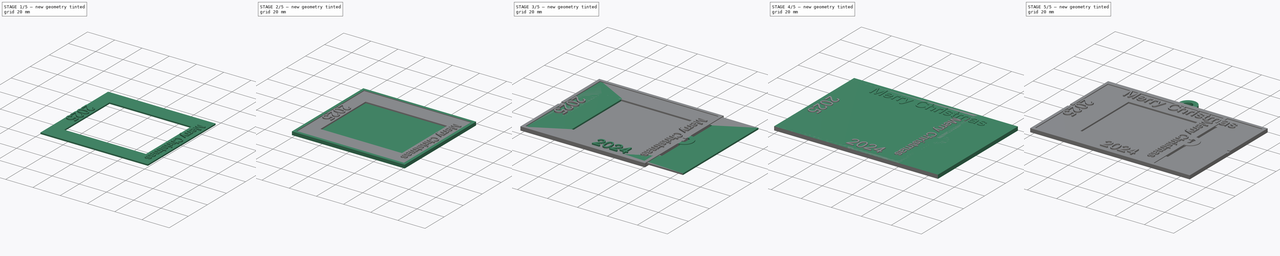
[diagram: build sequence overview — one tinted view per stage of 5, left to right]
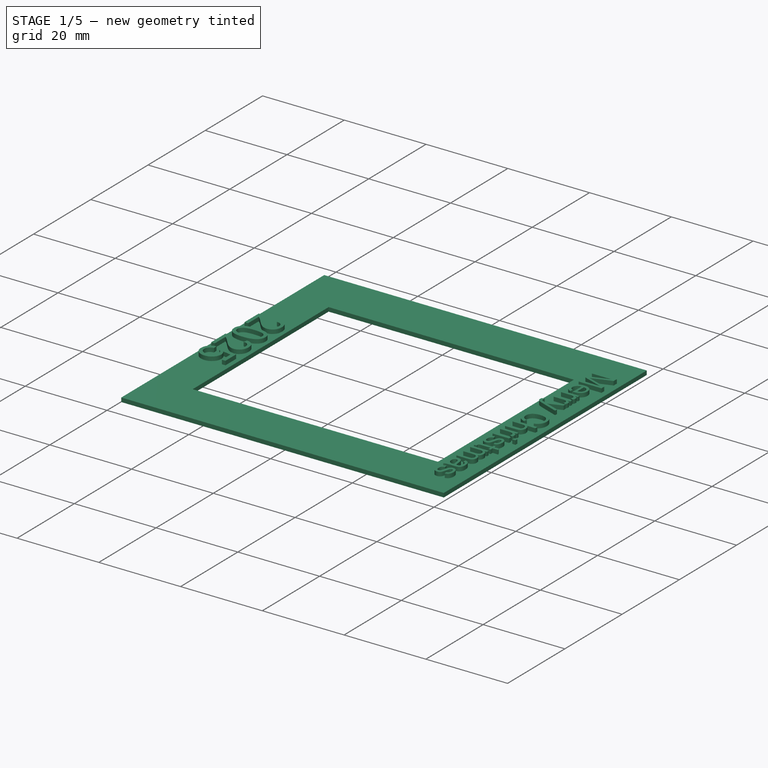
[diagram: stage 1 of 5 — iso view after this stage's code; geometry added in this stage tinted green]
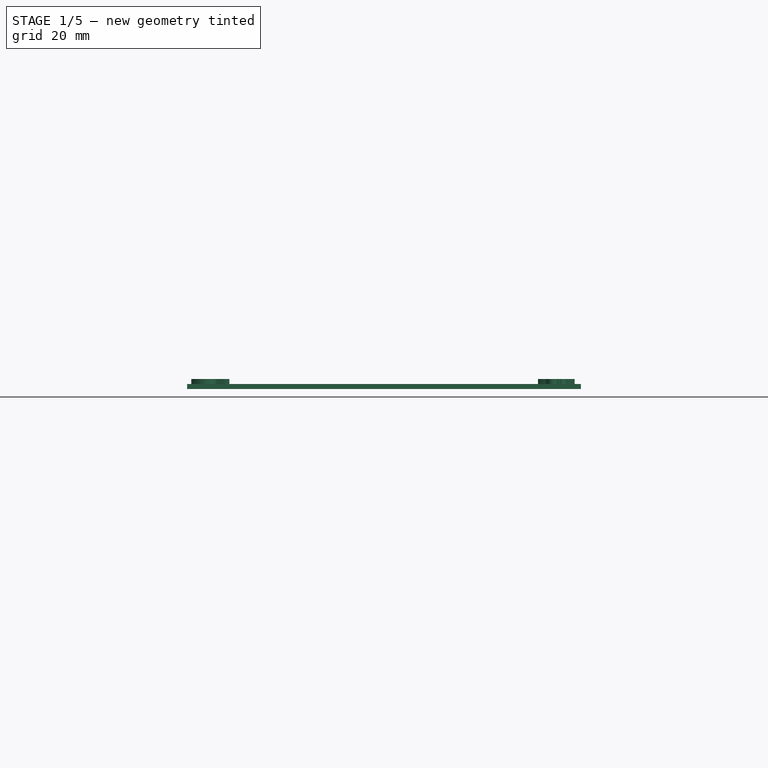
[diagram: stage 1 of 5 — front view after this stage's code; geometry added in this stage tinted green]
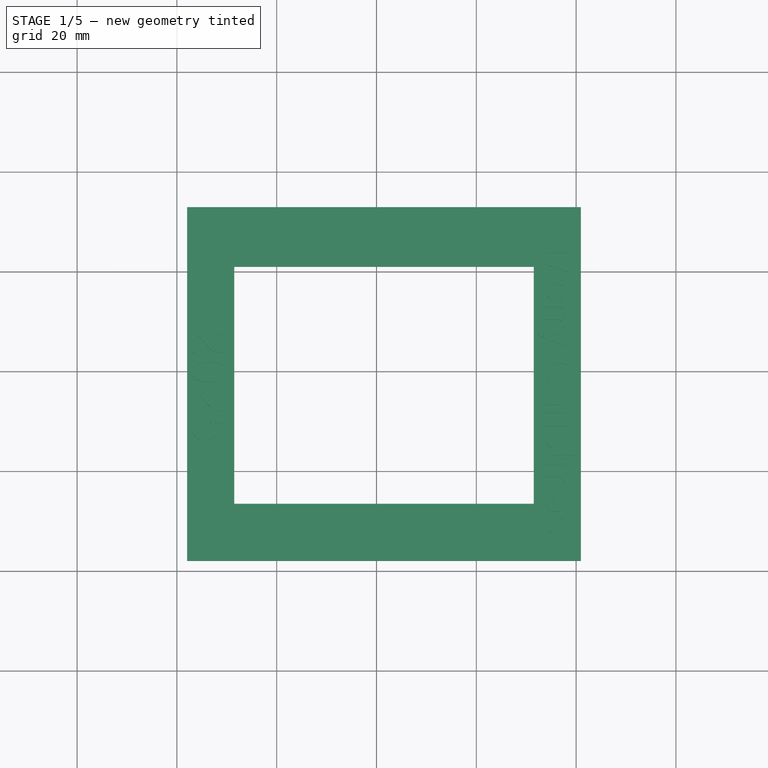
[diagram: stage 1 of 5 — top view after this stage's code; geometry added in this stage tinted green]
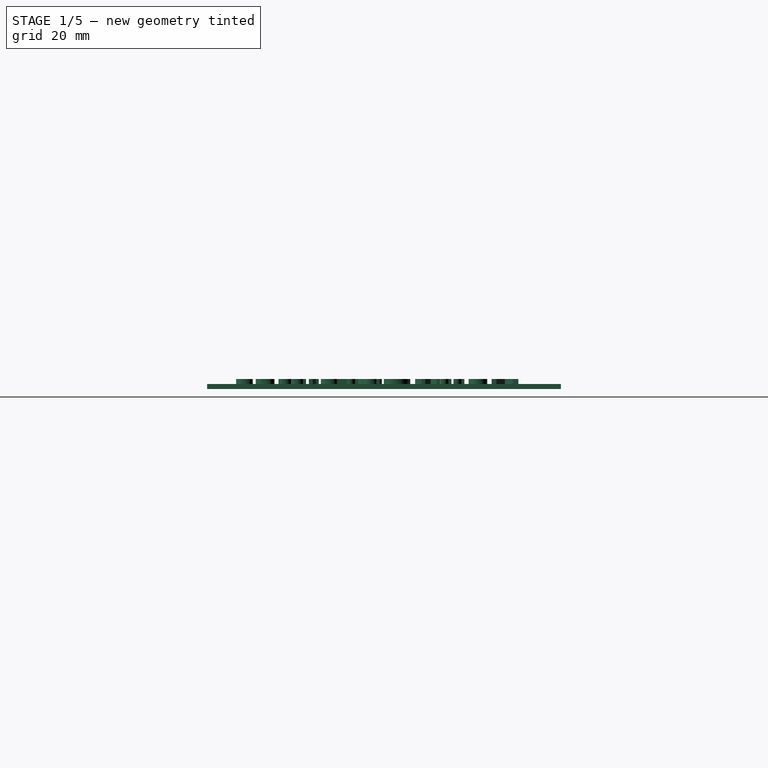
[diagram: stage 1 of 5 — right view after this stage's code; geometry added in this stage tinted green]
FCSTD DOCUMENT  (FreeCAD 0.21R33771 (Git))
Label: ChristimaPictureFrame
License: All rights reserved
LicenseURL: http://en.wikipedia.org/wiki/All_rights_reserved
objects: Sketcher::SketchObject×12, PartDesign::Pad×12, PartDesign::Pocket×4, Part::Part2DObjectPython×4, PartDesign::Body×4, Spreadsheet::Sheet×2
note: 52 computed .brp shape members not serialized (recipe doc carries the construction recipe); baked Part::Feature solids carry a one-line shape summary decoded from their .brp

FEATURE [PartDesign::Body] Body002  label="Body_Base00Horizontal"
  Group = -> [Sketch006,Pad006,Sketch007,Pocket002,Sketch008,Pad007,Sketch009,Pocket003]
  Origin = -> Origin002
  Tip = -> Pocket003
FEATURE [Spreadsheet::Sheet] Spreadsheet001  label="Spreadsheet001Horizontal"
  cells = A2='outerWidth; B2(outerWidth)==83 - xreduce; A3='outerHeight; B3(outerHeight)==75 - yreduce; A4='innerWidth; B4(innerWidth)==60 - xreduce; A5='innerHeight; B5(innerHeight)==48 - yreduce; A6='thickness; B6(thickness)=1; A7='sideThickness; B7(sideThickness)=2; A8='adj; B8(adj)=0.05; A10='xreduce; B10(xreduce)==83 - 83; C10=53; A11='yreduce; B11(yreduce)==75 - 75; C11=43; A13='calcInnerHeight; B13(calcInnerHeight)==outerHeight - sideThickness * 2 - adj * 2; A14='calcInnerWidth; B14(calcInnerWidth)==outerWidth - sideThickness * 2 - adj * 2; A15='calcInnerXSideSize; B15(calcInnerXSideSize)==(calcInnerWidth - innerWidth) / 2; A16='calcInnerYSideSize; B16(calcInnerYSideSize)==(calcInnerHeight - innerHeight) / 2; A17='outerSideThicknessPad; B17(outerSideThicknessPad)=0.5; A18='outerSideThickness; B18(outerSideThickness)==thickness * 2 + outerSideThicknessPad; A19='outerHoleDepth; B19(outerHoleDepth)==thickness + outerSideThicknessPad; A21='midOpeningWidth; B21(midOpeningWidth)=3; A22='midOpeningToLower; B22(midOpeningToLower)==outerHeight / 2 - midOpeningWidth / 2; A23='midOpeningAdj; B23(midOpeningAdj)=0.02
FEATURE [Part::Part2DObjectPython] ShapeString002  # Draft 2D object (typed FeaturePython)
  FontFile = <path>
  MakeFace = true
  Placement = pos=(3,49,2) rot=(0,0,-1;1.5708rad)
  Size = 8
  String = 2025
  Tracking = 0
  expr: .Placement.Base.z = Spreadsheet.thickness * 2
FEATURE [Part::Part2DObjectPython] ShapeString003  # Draft 2D object (typed FeaturePython)
  FontFile = <path>
  MakeFace = true
  Placement = pos=(74,65,2) rot=(0,0,-1;1.5708rad)
  Size = 6
  String = Merry Christmas
  Tracking = 0
  expr: .Placement.Base.x = Spreadsheet001.outerWidth - 9
  expr: .Placement.Base.z = Spreadsheet.thickness * 2
FEATURE [Sketcher::SketchObject] Sketch010
  AttachmentOffset = pos=(0,0,1) rot=(0,0,1;0rad)
  FullyConstrained = true
  MapMode = 5
  Placement = pos=(0,0,1) rot=(0,0,1;0rad)
  Support = -> [XY_Plane003]
  expr: .AttachmentOffset.Base.z = Spreadsheet.thickness
  expr: Constraints[10] = Spreadsheet001.calcInnerWidth
  expr: Constraints[11] = Spreadsheet001.calcInnerHeight
  expr: Constraints[20] = Spreadsheet001.calcInnerXSideSize
  expr: Constraints[21] = Spreadsheet001.calcInnerXSideSize
  expr: Constraints[22] = Spreadsheet001.calcInnerYSideSize
  expr: Constraints[23] = Spreadsheet.calcInnerYSideSize
  expr: Constraints[8] = Spreadsheet001.sideThickness + Spreadsheet001.adj
  expr: Constraints[9] = Spreadsheet001.sideThickness + Spreadsheet001.adj
  sketch-geometry (8):
    g0: LineSegment StartX=2.05 StartY=72.95 StartZ=0 EndX=80.95 EndY=72.95 EndZ=0
    g1: LineSegment StartX=80.95 StartY=72.95 StartZ=0 EndX=80.95 EndY=2.05 EndZ=0
    g2: LineSegment StartX=80.95 StartY=2.05 StartZ=0 EndX=2.05 EndY=2.05 EndZ=0
    g3: LineSegment StartX=2.05 StartY=2.05 StartZ=0 EndX=2.05 EndY=72.95 EndZ=0
    g4: LineSegment StartX=11.5 StartY=61 StartZ=0 EndX=71.5 EndY=61 EndZ=0
    g5: LineSegment StartX=71.5 StartY=61 StartZ=0 EndX=71.5 EndY=13.5 EndZ=0
    g6: LineSegment StartX=71.5 StartY=13.5 StartZ=0 EndX=11.5 EndY=13.5 EndZ=0
    g7: LineSegment StartX=11.5 StartY=13.5 StartZ=0 EndX=11.5 EndY=61 EndZ=0
  constraints (24):
    c: Coincident(g0,g1)
    c: Coincident(g1,g2)
    c: Coincident(g2,g3)
    c: Coincident(g3,g0)
    c: Horizontal(g0)
    c: Horizontal(g2)
    c: Vertical(g1)
    c: Vertical(g3)
    c: DistanceX(g-1,g2) = 2.05
    c: DistanceY(g-1,g2) = 2.05
    c: DistanceX(g0,g0) = 78.9
    c: DistanceY(g3,g3) = 70.9
    c: Coincident(g4,g5)
    c: Coincident(g5,g6)
    c: Coincident(g6,g7)
    c: Coincident(g7,g4)
    c: Horizontal(g4)
    c: Horizontal(g6)
    c: Vertical(g5)
    c: Vertical(g7)
    c: DistanceX(g0,g4) = 9.45
    c: DistanceX(g4,g0) = 9.45
    c: DistanceY(g2,g6) = 11.45
    c: DistanceY(g4,g0) = 11.95
FEATURE [PartDesign::Pad] Pad008
  Direction = (0,0,1)
  Length = 1
  Length2 = 10
  Profile = -> Sketch010
  ReferenceAxis = -> Sketch010 [N_Axis]
  Type = 0
  expr: Length = Spreadsheet.thickness
FEATURE [PartDesign::Pad] Pad009
  BaseFeature = -> Pad008
  Direction = (0,0,1)
  Length = 1
  Length2 = 10
  Profile = -> ShapeString002
  ReferenceAxis = -> ShapeString002 [N_Axis]
  Type = 0
FEATURE [PartDesign::Pad] Pad010
  BaseFeature = -> Pad009
  Direction = (0,0,1)
  Length = 1
  Length2 = 10
  Profile = -> ShapeString003
  ReferenceAxis = -> ShapeString003 [N_Axis]
  Type = 0
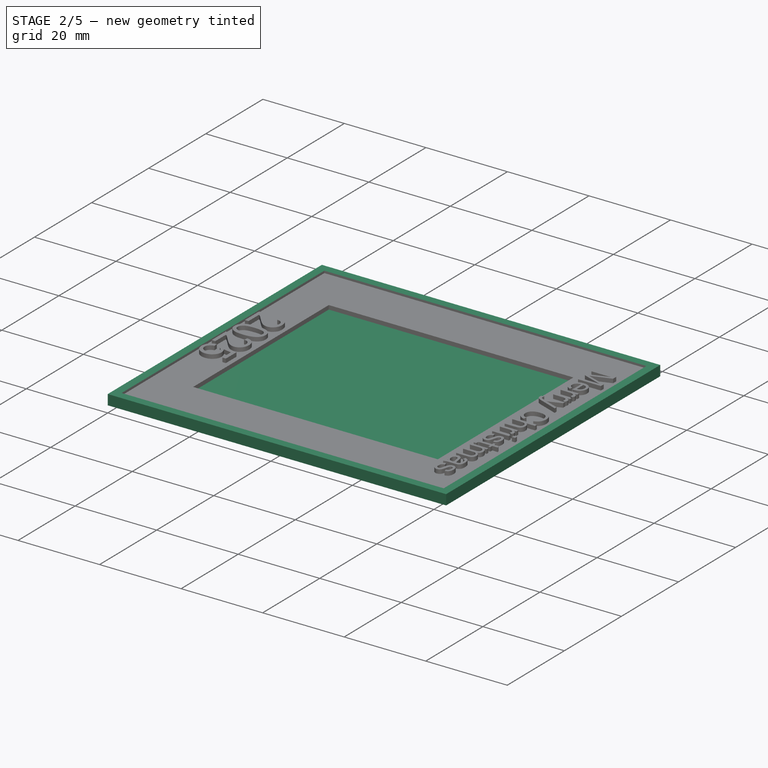
[diagram: stage 2 of 5 — iso view after this stage's code; geometry added in this stage tinted green]
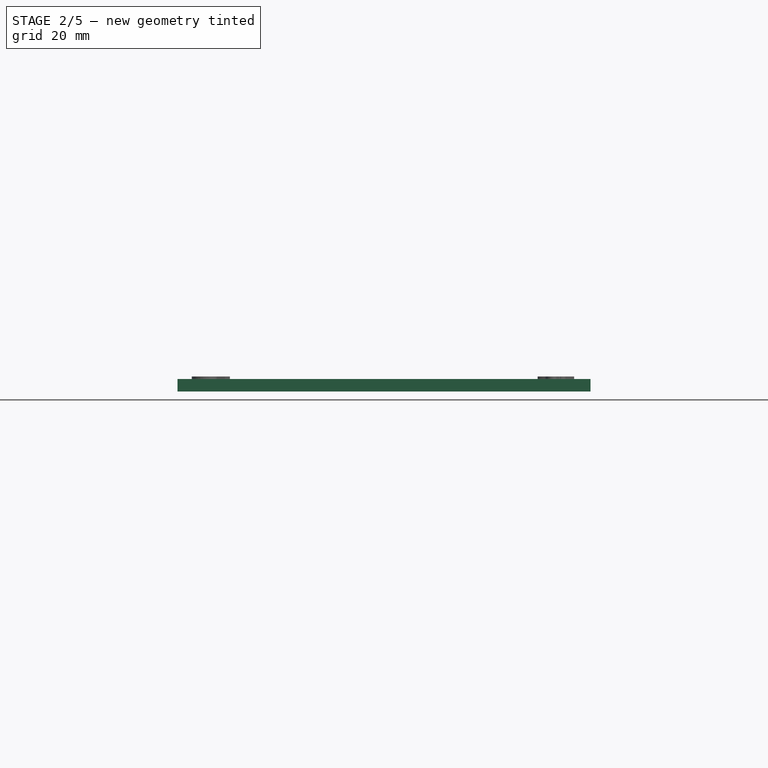
[diagram: stage 2 of 5 — front view after this stage's code; geometry added in this stage tinted green]
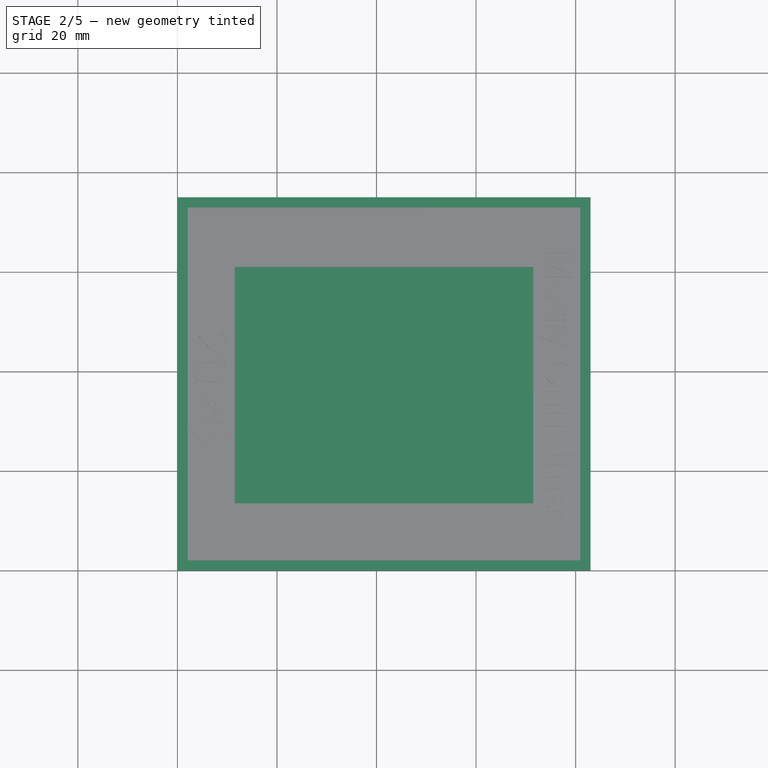
[diagram: stage 2 of 5 — top view after this stage's code; geometry added in this stage tinted green]
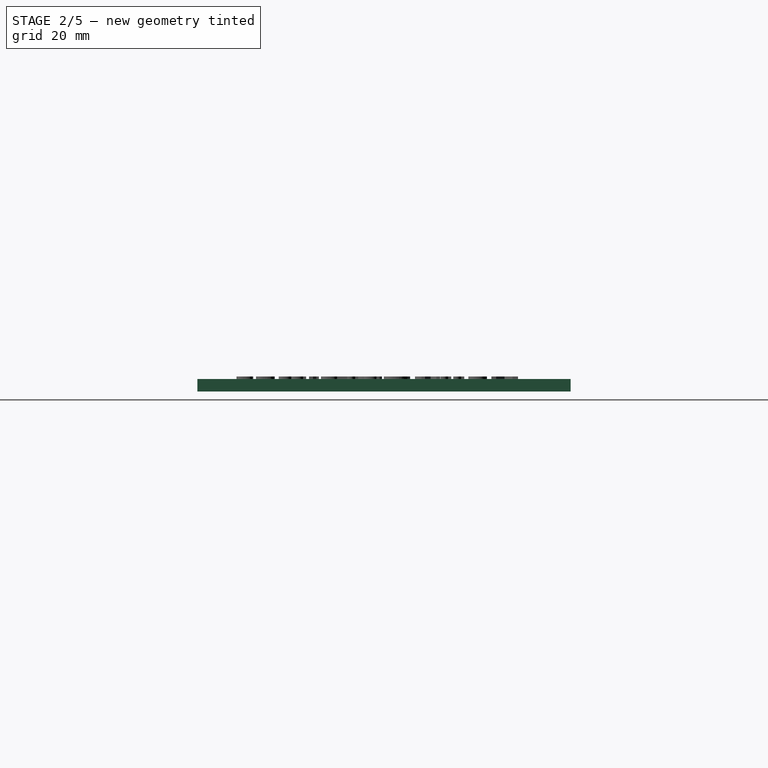
[diagram: stage 2 of 5 — right view after this stage's code; geometry added in this stage tinted green]
FEATURE [PartDesign::Body] Body001  label="Body001_Cover"
  Group = -> [Sketch002,Pad001,ShapeString,Pad002,ShapeString001,Pad003,Sketch005,Pad005]
  Origin = -> Origin001
  Tip = -> Pad005
FEATURE [Sketcher::SketchObject] Sketch006
  FullyConstrained = true
  MapMode = 5
  Support = -> [XY_Plane002]
  expr: Constraints[10] = Spreadsheet001.outerHeight
  expr: Constraints[9] = Spreadsheet001.outerWidth
  sketch-geometry (4):
    g0: LineSegment StartX=0 StartY=0 StartZ=0 EndX=83 EndY=0 EndZ=0
    g1: LineSegment StartX=83 StartY=0 StartZ=0 EndX=83 EndY=75 EndZ=0
    g2: LineSegment StartX=83 StartY=75 StartZ=0 EndX=0 EndY=75 EndZ=0
    g3: LineSegment StartX=0 StartY=75 StartZ=0 EndX=0 EndY=0 EndZ=0
  constraints (11):
    c: Coincident(g0,g1)
    c: Coincident(g1,g2)
    c: Coincident(g2,g3)
    c: Coincident(g3,g0)
    c: Horizontal(g0)
    c: Horizontal(g2)
    c: Vertical(g1)
    c: Vertical(g3)
    c: Coincident(g0,g-1)
    c: DistanceX(g0,g0) = 83
    c: DistanceY(g3,g3) = 75
FEATURE [PartDesign::Pad] Pad006
  Direction = (0,0,1)
  Length = 2.5
  Length2 = 10
  Profile = -> Sketch006
  ReferenceAxis = -> Sketch006 [N_Axis]
  Type = 0
  expr: Length = Spreadsheet001.outerSideThickness
FEATURE [Sketcher::SketchObject] Sketch007
  AttachmentOffset = pos=(0,0,2.5) rot=(0,0,1;0rad)
  FullyConstrained = true
  MapMode = 5
  Placement = pos=(0,0,2.5) rot=(0,0,1;0rad)
  Support = -> [XY_Plane002]
  expr: .AttachmentOffset.Base.z = Spreadsheet001.outerSideThickness
  expr: Constraints[10] = Spreadsheet001.outerHeight - Spreadsheet001.sideThickness * 2
  expr: Constraints[11] = Spreadsheet001.outerWidth - Spreadsheet001.sideThickness * 2
  expr: Constraints[8] = Spreadsheet001.sideThickness
  expr: Constraints[9] = Spreadsheet001.sideThickness
  sketch-geometry (4):
    g0: LineSegment StartX=2 StartY=2 StartZ=0 EndX=81 EndY=2 EndZ=0
    g1: LineSegment StartX=81 StartY=2 StartZ=0 EndX=81 EndY=73 EndZ=0
    g2: LineSegment StartX=81 StartY=73 StartZ=0 EndX=2 EndY=73 EndZ=0
    g3: LineSegment StartX=2 StartY=73 StartZ=0 EndX=2 EndY=2 EndZ=0
  constraints (12):
    c: Coincident(g0,g1)
    c: Coincident(g1,g2)
    c: Coincident(g2,g3)
    c: Coincident(g3,g0)
    c: Horizontal(g0)
    c: Horizontal(g2)
    c: Vertical(g1)
    c: Vertical(g3)
    c: DistanceY(g-1,g0) = 2
    c: DistanceX(g-1,g0) = 2
    c: DistanceY(g3,g3) = 71
    c: DistanceX(g0,g0) = 79
FEATURE [PartDesign::Pocket] Pocket002
  BaseFeature = -> Pad006
  Direction = (0,0,-1)
  Length = 1.5
  Length2 = 5
  Profile = -> Sketch007
  ReferenceAxis = -> Sketch007 [N_Axis]
  Type = 0
  expr: Length = Spreadsheet001.outerHoleDepth
FEATURE [Sketcher::SketchObject] Sketch011
  AttachmentOffset = pos=(0,0,1) rot=(0,0,1;0rad)
  FullyConstrained = true
  MapMode = 5
  Placement = pos=(0,0,1) rot=(0,0,1;0rad)
  Support = -> [XY_Plane003]
  expr: .AttachmentOffset.Base.z = Spreadsheet.thickness
  expr: Constraints[17] = Spreadsheet001.midOpeningWidth - Spreadsheet001.midOpeningAdj
  expr: Constraints[20] = Spreadsheet001.outerWidth
  expr: Constraints[21] = Spreadsheet001.midOpeningToLower - Spreadsheet001.midOpeningAdj / 2
  expr: Constraints[22] = Spreadsheet001.midOpeningToLower - Spreadsheet001.midOpeningAdj / 2
  expr: Constraints[23] = Spreadsheet.sideThickness + Spreadsheet.adj
  sketch-geometry (8):
    g0: LineSegment StartX=0 StartY=35.99 StartZ=0 EndX=2.05 EndY=35.99 EndZ=0
    g1: LineSegment StartX=2.05 StartY=35.99 StartZ=0 EndX=2.05 EndY=38.97 EndZ=0
    g2: LineSegment StartX=2.05 StartY=38.97 StartZ=0 EndX=0 EndY=38.97 EndZ=0
    g3: LineSegment StartX=0 StartY=38.97 StartZ=0 EndX=0 EndY=35.99 EndZ=0
    g4: LineSegment StartX=80.95 StartY=38.97 StartZ=0 EndX=83 EndY=38.97 EndZ=0
    g5: LineSegment StartX=83 StartY=38.97 StartZ=0 EndX=83 EndY=35.99 EndZ=0
    g6: LineSegment StartX=83 StartY=35.99 StartZ=0 EndX=80.95 EndY=35.99 EndZ=0
    g7: LineSegment StartX=80.95 StartY=35.99 StartZ=0 EndX=80.95 EndY=38.97 EndZ=0
  constraints (24):
    c: Coincident(g0,g1)
    c: Coincident(g1,g2)
    c: Coincident(g2,g3)
    c: Coincident(g3,g0)
    c: Horizontal(g0)
    c: Horizontal(g2)
    c: Vertical(g1)
    c: Vertical(g3)
    c: PointOnObject(g0,g-2)
    c: Coincident(g4,g5)
    c: Coincident(g5,g6)
    c: Coincident(g6,g7)
    c: Coincident(g7,g4)
    c: Horizontal(g4)
    c: Horizontal(g6)
    c: Vertical(g5)
    c: Vertical(g7)
    c: DistanceY(g3,g3) = 2.98
    c: Equal(g3,g5)
    c: Equal(g0,g6)
    c: DistanceX(g0,g5) = 83
    c: DistanceY(g-1,g0) = 35.99
    c: DistanceY(g-1,g5) = 35.99
    c: DistanceX(g0,g0) = 2.05
FEATURE [PartDesign::Pad] Pad011
  BaseFeature = -> Pad010
  Direction = (0,0,1)
  Length = 1
  Length2 = 10
  Profile = -> Sketch011
  ReferenceAxis = -> Sketch011 [N_Axis]
  Type = 0
  expr: Length = Spreadsheet.thickness
FEATURE [PartDesign::Body] Body003  label="Body001_Cover00Horzontal"
  Group = -> [Sketch010,Pad008,ShapeString002,Pad009,ShapeString003,Pad010,Sketch011,Pad011]
  Origin = -> Origin003
  Tip = -> Pad011
note: 4 file-system paths scrubbed to <path> (originals preserved in the JSON sidecar)
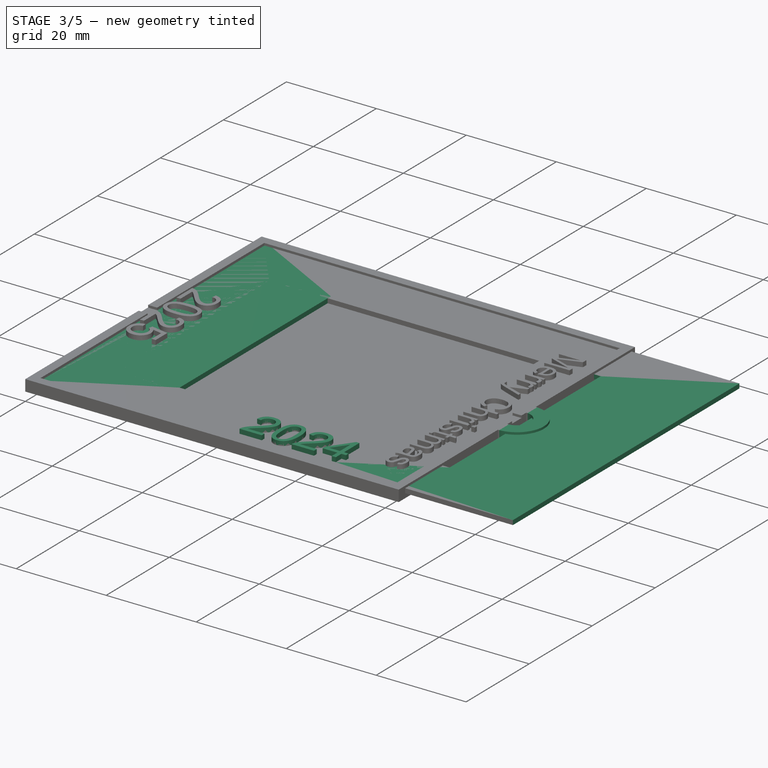
[diagram: stage 3 of 5 — iso view after this stage's code; geometry added in this stage tinted green]
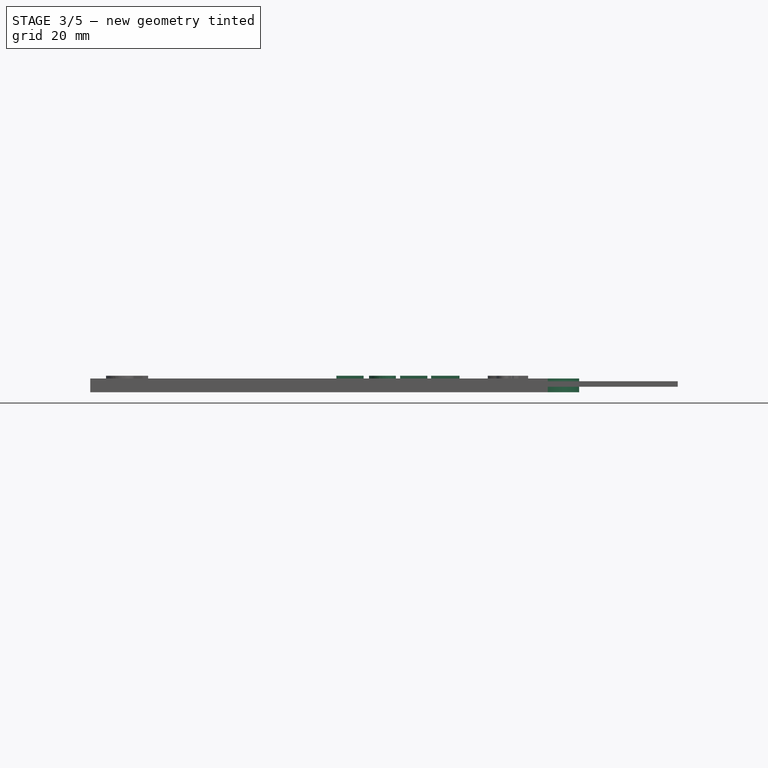
[diagram: stage 3 of 5 — front view after this stage's code; geometry added in this stage tinted green]
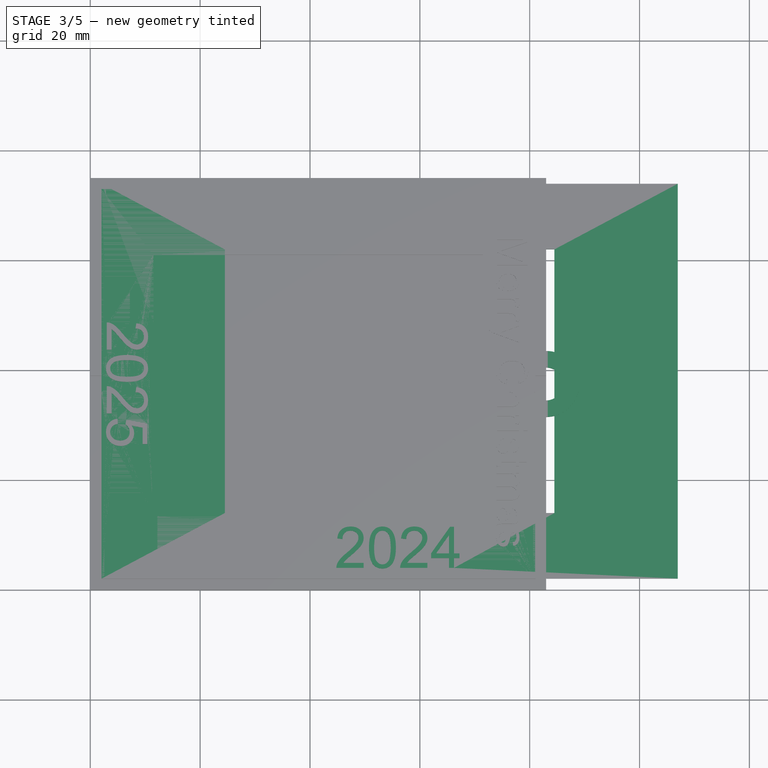
[diagram: stage 3 of 5 — top view after this stage's code; geometry added in this stage tinted green]
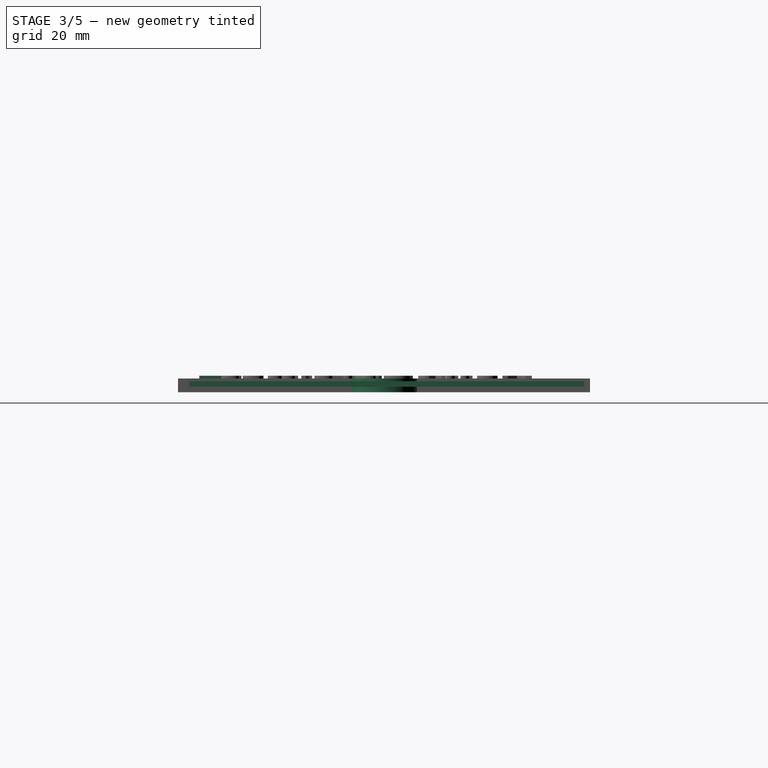
[diagram: stage 3 of 5 — right view after this stage's code; geometry added in this stage tinted green]
FEATURE [Sketcher::SketchObject] Sketch002
  AttachmentOffset = pos=(0,0,1) rot=(0,0,1;0rad)
  FullyConstrained = true
  MapMode = 5
  Placement = pos=(0,0,1) rot=(0,0,1;0rad)
  Support = -> [XY_Plane001]
  expr: .AttachmentOffset.Base.z = Spreadsheet.thickness
  expr: Constraints[10] = Spreadsheet.calcInnerWidth
  expr: Constraints[11] = Spreadsheet.calcInnerHeight
  expr: Constraints[20] = Spreadsheet.calcInnerXSideSize
  expr: Constraints[21] = Spreadsheet.calcInnerXSideSize
  expr: Constraints[22] = Spreadsheet.calcInnerYSideSize
  expr: Constraints[23] = Spreadsheet.calcInnerYSideSize
  expr: Constraints[8] = Spreadsheet.sideThickness + Spreadsheet.adj
  expr: Constraints[9] = Spreadsheet.sideThickness + Spreadsheet.adj
  sketch-geometry (8):
    g0: LineSegment StartX=2.05 StartY=73.95 StartZ=0 EndX=106.95 EndY=73.95 EndZ=0
    g1: LineSegment StartX=106.95 StartY=73.95 StartZ=0 EndX=106.95 EndY=2.05 EndZ=0
    g2: LineSegment StartX=106.95 StartY=2.05 StartZ=0 EndX=2.05 EndY=2.05 EndZ=0
    g3: LineSegment StartX=2.05 StartY=2.05 StartZ=0 EndX=2.05 EndY=73.95 EndZ=0
    g4: LineSegment StartX=24.5 StartY=62 StartZ=0 EndX=84.5 EndY=62 EndZ=0
    g5: LineSegment StartX=84.5 StartY=62 StartZ=0 EndX=84.5 EndY=14 EndZ=0
    g6: LineSegment StartX=84.5 StartY=14 StartZ=0 EndX=24.5 EndY=14 EndZ=0
    g7: LineSegment StartX=24.5 StartY=14 StartZ=0 EndX=24.5 EndY=62 EndZ=0
  constraints (24):
    c: Coincident(g0,g1)
    c: Coincident(g1,g2)
    c: Coincident(g2,g3)
    c: Coincident(g3,g0)
    c: Horizontal(g0)
    c: Horizontal(g2)
    c: Vertical(g1)
    c: Vertical(g3)
    c: DistanceX(g-1,g2) = 2.05
    c: DistanceY(g-1,g2) = 2.05
    c: DistanceX(g0,g0) = 104.9
    c: DistanceY(g3,g3) = 71.9
    c: Coincident(g4,g5)
    c: Coincident(g5,g6)
    c: Coincident(g6,g7)
    c: Coincident(g7,g4)
    c: Horizontal(g4)
    c: Horizontal(g6)
    c: Vertical(g5)
    c: Vertical(g7)
    c: DistanceX(g0,g4) = 22.45
    c: DistanceX(g4,g0) = 22.45
    c: DistanceY(g2,g6) = 11.95
    c: DistanceY(g4,g0) = 11.95
FEATURE [PartDesign::Pad] Pad001
  Direction = (0,0,1)
  Length = 1
  Length2 = 10
  Profile = -> Sketch002
  ReferenceAxis = -> Sketch002 [N_Axis]
  Type = 0
  expr: Length = Spreadsheet.thickness
FEATURE [Part::Part2DObjectPython] ShapeString  # Draft 2D object (typed FeaturePython)
  FontFile = <path>
  MakeFace = true
  Placement = pos=(44.5,4,2) rot=(0,0,1;0rad)
  Size = 8
  String = 2024
  Tracking = 0
  expr: .Placement.Base.x = (Spreadsheet.outerWidth - 20) / 2
FEATURE [PartDesign::Pad] Pad002
  BaseFeature = -> Pad001
  Direction = (0,0,1)
  Length = 1
  Length2 = 10
  Profile = -> ShapeString
  ReferenceAxis = -> ShapeString [N_Axis]
  Type = 0
FEATURE [Sketcher::SketchObject] Sketch008
  FullyConstrained = true
  MapMode = 5
  Support = -> [XY_Plane002]
  expr: Constraints[11] = Spreadsheet001.outerWidth
  expr: Constraints[12] = Spreadsheet001.outerWidth
  expr: Constraints[1] = Spreadsheet001.outerWidth
  expr: Constraints[2] = Spreadsheet001.outerHeight / 2
  sketch-geometry (4):
    g0: ArcOfCircle CenterX=83 CenterY=37.5 CenterZ=0 NormalX=0 NormalY=0 NormalZ=1 AngleXU=0 Radius=6 StartAngle=4.71239 EndAngle=7.85398
    g1: ArcOfCircle CenterX=83 CenterY=37.5 CenterZ=0 NormalX=0 NormalY=0 NormalZ=1 AngleXU=0 Radius=3 StartAngle=4.71239 EndAngle=7.85398
    g2: LineSegment StartX=83 StartY=43.5 StartZ=0 EndX=83 EndY=40.5 EndZ=0
    g3: LineSegment StartX=83 StartY=34.5 StartZ=0 EndX=83 EndY=31.5 EndZ=0
  constraints (13):
    c: Radius(g0) = 6
    c: DistanceX(g-1,g0) = 83
    c: DistanceY(g-1,g0) = 37.5
    c: Coincident(g1,g0)
    c: Coincident(g2,g0)
    c: Coincident(g3,g0)
    c: Vertical(g2)
    c: Coincident(g2,g1)
    c: Coincident(g3,g1)
    c: Radius(g1) = 3
    c: Vertical(g3)
    c: DistanceX(g-1,g0) = 83
    c: DistanceX(g-1,g1) = 83
FEATURE [PartDesign::Pad] Pad007
  BaseFeature = -> Pocket002
  Direction = (0,0,1)
  Length = 2.5
  Length2 = 10
  Profile = -> Sketch008
  ReferenceAxis = -> Sketch008 [N_Axis]
  Type = 0
  expr: Length = Spreadsheet001.outerSideThickness
FEATURE [Sketcher::SketchObject] Sketch009
  AttachmentOffset = pos=(0,0,2.5) rot=(0,0,1;0rad)
  FullyConstrained = true
  MapMode = 5
  Placement = pos=(0,0,2.5) rot=(0,0,1;0rad)
  Support = -> [XY_Plane002]
  expr: .AttachmentOffset.Base.z = Spreadsheet001.outerSideThickness
  expr: Constraints[10] = Spreadsheet001.midOpeningWidth
  expr: Constraints[11] = Spreadsheet001.outerWidth
  expr: Constraints[9] = Spreadsheet001.midOpeningToLower
  sketch-geometry (4):
    g0: LineSegment StartX=0 StartY=36 StartZ=0 EndX=83 EndY=36 EndZ=0
    g1: LineSegment StartX=83 StartY=36 StartZ=0 EndX=83 EndY=39 EndZ=0
    g2: LineSegment StartX=83 StartY=39 StartZ=0 EndX=0 EndY=39 EndZ=0
    g3: LineSegment StartX=0 StartY=39 StartZ=0 EndX=0 EndY=36 EndZ=0
  constraints (12):
    c: Coincident(g0,g1)
    c: Coincident(g1,g2)
    c: Coincident(g2,g3)
    c: Coincident(g3,g0)
    c: Horizontal(g0)
    c: Horizontal(g2)
    c: Vertical(g1)
    c: Vertical(g3)
    c: PointOnObject(g0,g-2)
    c: DistanceY(g-1,g0) = 36
    c: DistanceY(g1,g1) = 3
    c: DistanceX(g2,g2) = 83
FEATURE [PartDesign::Pocket] Pocket003
  BaseFeature = -> Pad007
  Direction = (0,0,-1)
  Length = 1.5
  Length2 = 5
  Profile = -> Sketch009
  ReferenceAxis = -> Sketch009 [N_Axis]
  Type = 0
  expr: Length = Spreadsheet001.outerHoleDepth
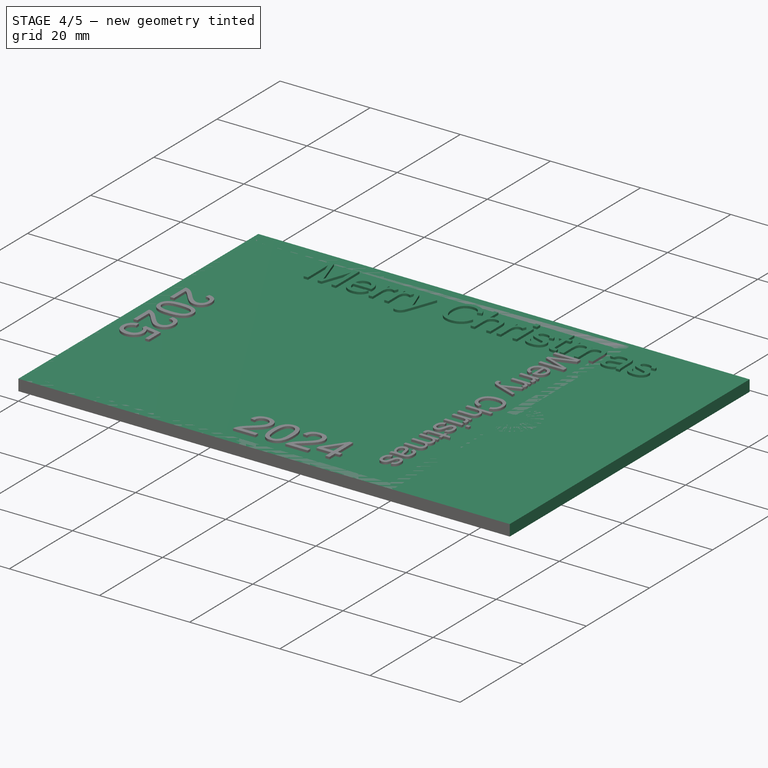
[diagram: stage 4 of 5 — iso view after this stage's code; geometry added in this stage tinted green]
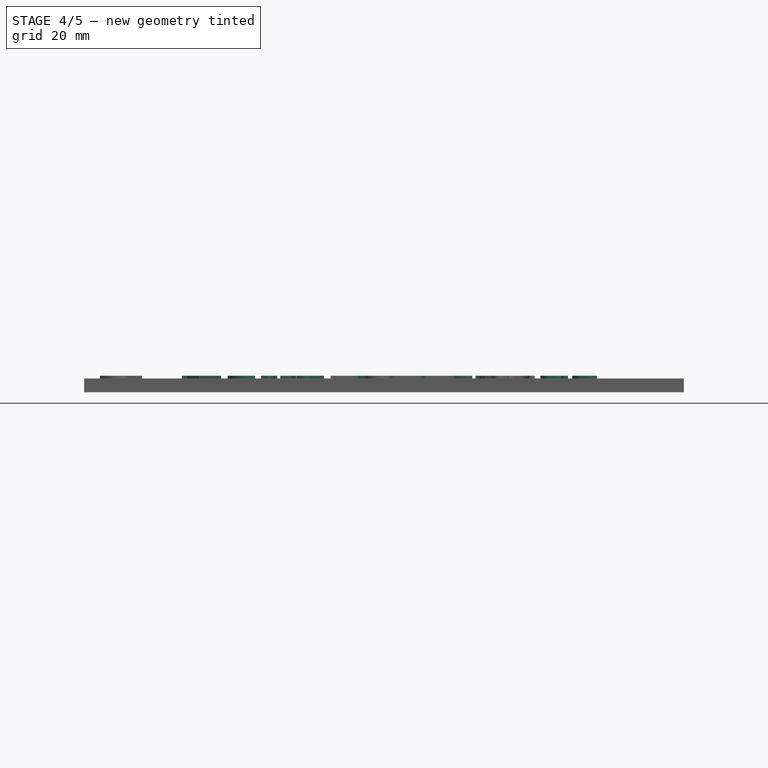
[diagram: stage 4 of 5 — front view after this stage's code; geometry added in this stage tinted green]
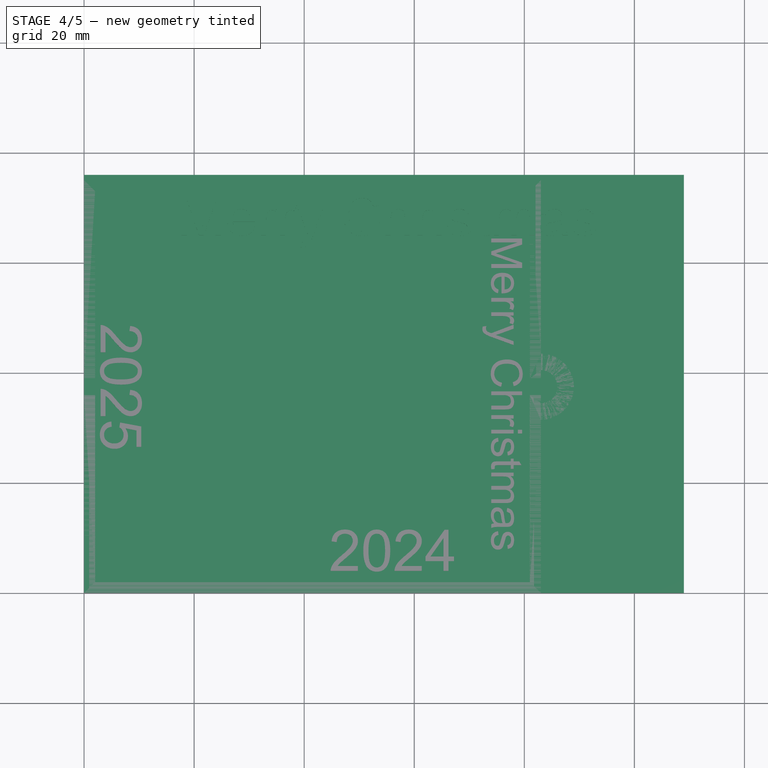
[diagram: stage 4 of 5 — top view after this stage's code; geometry added in this stage tinted green]
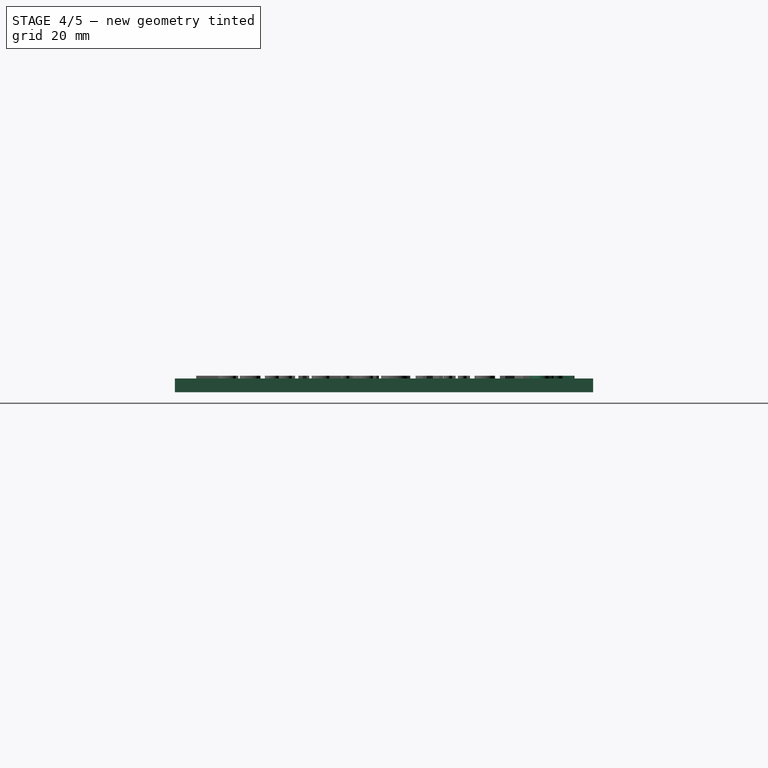
[diagram: stage 4 of 5 — right view after this stage's code; geometry added in this stage tinted green]
FEATURE [Sketcher::SketchObject] Sketch
  FullyConstrained = true
  MapMode = 5
  Support = -> [XY_Plane]
  expr: Constraints[10] = Spreadsheet.outerHeight
  expr: Constraints[9] = Spreadsheet.outerWidth
  sketch-geometry (4):
    g0: LineSegment StartX=0 StartY=0 StartZ=0 EndX=109 EndY=0 EndZ=0
    g1: LineSegment StartX=109 StartY=0 StartZ=0 EndX=109 EndY=76 EndZ=0
    g2: LineSegment StartX=109 StartY=76 StartZ=0 EndX=0 EndY=76 EndZ=0
    g3: LineSegment StartX=0 StartY=76 StartZ=0 EndX=0 EndY=0 EndZ=0
  constraints (11):
    c: Coincident(g0,g1)
    c: Coincident(g1,g2)
    c: Coincident(g2,g3)
    c: Coincident(g3,g0)
    c: Horizontal(g0)
    c: Horizontal(g2)
    c: Vertical(g1)
    c: Vertical(g3)
    c: Coincident(g0,g-1)
    c: DistanceX(g0,g0) = 109
    c: DistanceY(g3,g3) = 76
FEATURE [Spreadsheet::Sheet] Spreadsheet
  cells = A2='outerWidth; B2(outerWidth)==picWidth + sideThickness * 2; E2='picWidth; F2(picWidth)=105; A3='outerHeight; B3(outerHeight)==picHeight + sideThickness * 2; E3='picHeight; F3(picHeight)=72; A4='innerWidth; B4(innerWidth)==60 - xreduce; A5='innerHeight; B5(innerHeight)==48 - yreduce; A6='thickness; B6(thickness)=1; A7='sideThickness; B7(sideThickness)=2; A8='adj; B8(adj)=0.05; A10='xreduce; B10(xreduce)==83 - 83; C10=53; A11='yreduce; B11(yreduce)==75 - 75; C11=43; A13='calcInnerHeight; B13(calcInnerHeight)==outerHeight - sideThickness * 2 - adj * 2; A14='calcInnerWidth; B14(calcInnerWidth)==outerWidth - sideThickness * 2 - adj * 2; A15='calcInnerXSideSize; B15(calcInnerXSideSize)==(calcInnerWidth - innerWidth) / 2; A16='calcInnerYSideSize; B16(calcInnerYSideSize)==(calcInnerHeight - innerHeight) / 2; A17='outerSideThicknessPad; B17(outerSideThicknessPad)=0.5; A18='outerSideThickness; B18(outerSideThickness)==thickness * 2 + outerSideThicknessPad; A19='outerHoleDepth; B19(outerHoleDepth)==thickness + outerSideThicknessPad; A21='midOpeningWidth; B21(midOpeningWidth)=3; A22='midOpeningToLower; B22(midOpeningToLower)==outerHeight / 2 - midOpeningWidth / 2; A23='midOpeningAdj; B23(midOpeningAdj)=0.02; A25='year; B25(year)=2024
FEATURE [PartDesign::Pad] Pad
  Direction = (0,0,1)
  Length = 2.5
  Length2 = 10
  Profile = -> Sketch
  ReferenceAxis = -> Sketch [N_Axis]
  Type = 0
  expr: Length = Spreadsheet.outerSideThickness
FEATURE [Part::Part2DObjectPython] ShapeString001  # Draft 2D object (typed FeaturePython)
  FontFile = <path>
  MakeFace = true
  Placement = pos=(17,65,2) rot=(0,0,1;0rad)
  Size = 8
  String = Merry Christmas
  Tracking = 0
  expr: .Placement.Base.x = (Spreadsheet.outerWidth - 75) / 2
  expr: .Placement.Base.y = Spreadsheet.outerHeight - 11
  expr: .Placement.Base.z = Spreadsheet.thickness * 2
FEATURE [PartDesign::Pad] Pad003
  BaseFeature = -> Pad002
  Direction = (0,0,1)
  Length = 1
  Length2 = 10
  Profile = -> ShapeString001
  ReferenceAxis = -> ShapeString001 [N_Axis]
  Type = 0
FEATURE [PartDesign::Body] Body  label="Body_Base"
  Group = -> [Sketch,Pad,Sketch001,Pocket,Sketch003,Pad004,Sketch004,Pocket001]
  Origin = -> Origin
  Tip = -> Pocket001
FEATURE [Sketcher::SketchObject] Sketch005
  AttachmentOffset = pos=(0,0,1) rot=(0,0,1;0rad)
  FullyConstrained = true
  MapMode = 5
  Placement = pos=(0,0,1) rot=(0,0,1;0rad)
  Support = -> [XY_Plane001]
  expr: .AttachmentOffset.Base.z = Spreadsheet.thickness
  expr: Constraints[17] = Spreadsheet.midOpeningWidth - Spreadsheet.midOpeningAdj
  expr: Constraints[20] = Spreadsheet.outerWidth
  expr: Constraints[21] = Spreadsheet.midOpeningToLower - Spreadsheet.midOpeningAdj / 2
  expr: Constraints[22] = Spreadsheet.midOpeningToLower - Spreadsheet.midOpeningAdj / 2
  expr: Constraints[23] = Spreadsheet.sideThickness + Spreadsheet.adj
  sketch-geometry (8):
    g0: LineSegment StartX=0 StartY=36.49 StartZ=0 EndX=2.05 EndY=36.49 EndZ=0
    g1: LineSegment StartX=2.05 StartY=36.49 StartZ=0 EndX=2.05 EndY=39.47 EndZ=0
    g2: LineSegment StartX=2.05 StartY=39.47 StartZ=0 EndX=0 EndY=39.47 EndZ=0
    g3: LineSegment StartX=0 StartY=39.47 StartZ=0 EndX=0 EndY=36.49 EndZ=0
    g4: LineSegment StartX=106.95 StartY=39.47 StartZ=0 EndX=109 EndY=39.47 EndZ=0
    g5: LineSegment StartX=109 StartY=39.47 StartZ=0 EndX=109 EndY=36.49 EndZ=0
    g6: LineSegment StartX=109 StartY=36.49 StartZ=0 EndX=106.95 EndY=36.49 EndZ=0
    g7: LineSegment StartX=106.95 StartY=36.49 StartZ=0 EndX=106.95 EndY=39.47 EndZ=0
  constraints (24):
    c: Coincident(g0,g1)
    c: Coincident(g1,g2)
    c: Coincident(g2,g3)
    c: Coincident(g3,g0)
    c: Horizontal(g0)
    c: Horizontal(g2)
    c: Vertical(g1)
    c: Vertical(g3)
    c: PointOnObject(g0,g-2)
    c: Coincident(g4,g5)
    c: Coincident(g5,g6)
    c: Coincident(g6,g7)
    c: Coincident(g7,g4)
    c: Horizontal(g4)
    c: Horizontal(g6)
    c: Vertical(g5)
    c: Vertical(g7)
    c: DistanceY(g3,g3) = 2.98
    c: Equal(g3,g5)
    c: Equal(g0,g6)
    c: DistanceX(g0,g5) = 109
    c: DistanceY(g-1,g0) = 36.49
    c: DistanceY(g-1,g5) = 36.49
    c: DistanceX(g0,g0) = 2.05
FEATURE [PartDesign::Pad] Pad005
  BaseFeature = -> Pad003
  Direction = (0,0,1)
  Length = 1
  Length2 = 10
  Profile = -> Sketch005
  ReferenceAxis = -> Sketch005 [N_Axis]
  Type = 0
  expr: Length = Spreadsheet.thickness
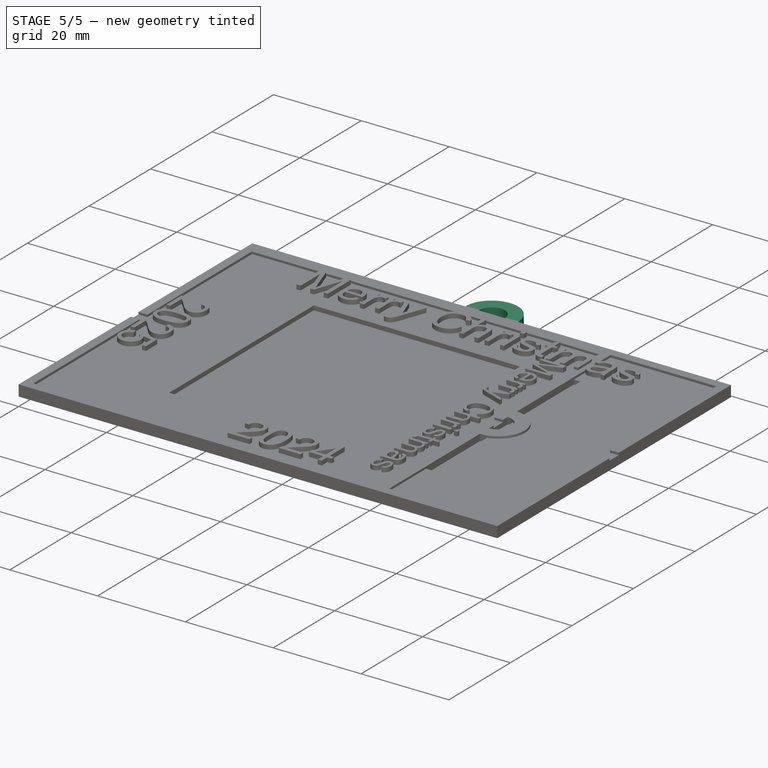
[diagram: stage 5 of 5 — iso view after this stage's code; geometry added in this stage tinted green]
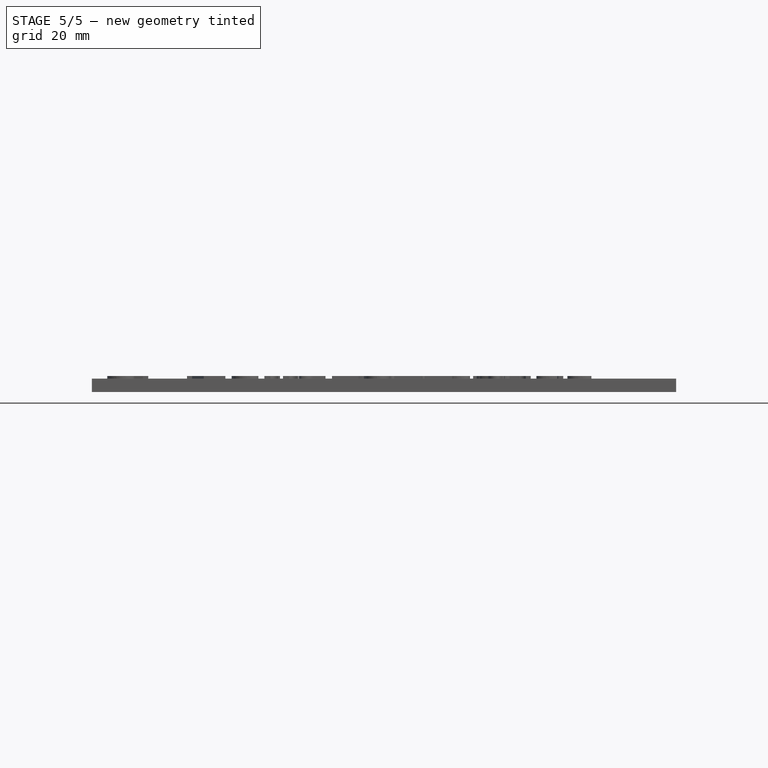
[diagram: stage 5 of 5 — front view after this stage's code; geometry added in this stage tinted green]
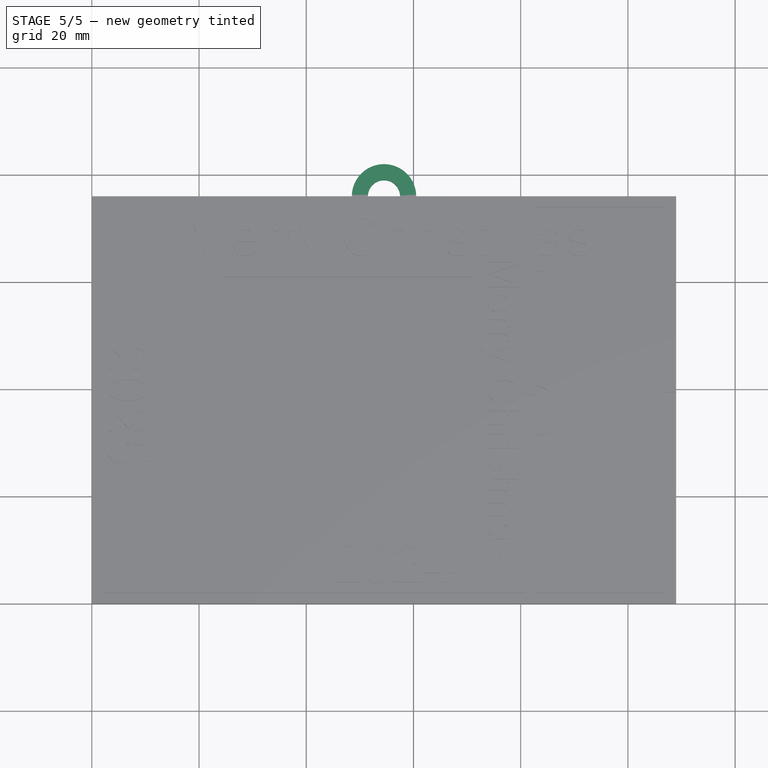
[diagram: stage 5 of 5 — top view after this stage's code; geometry added in this stage tinted green]
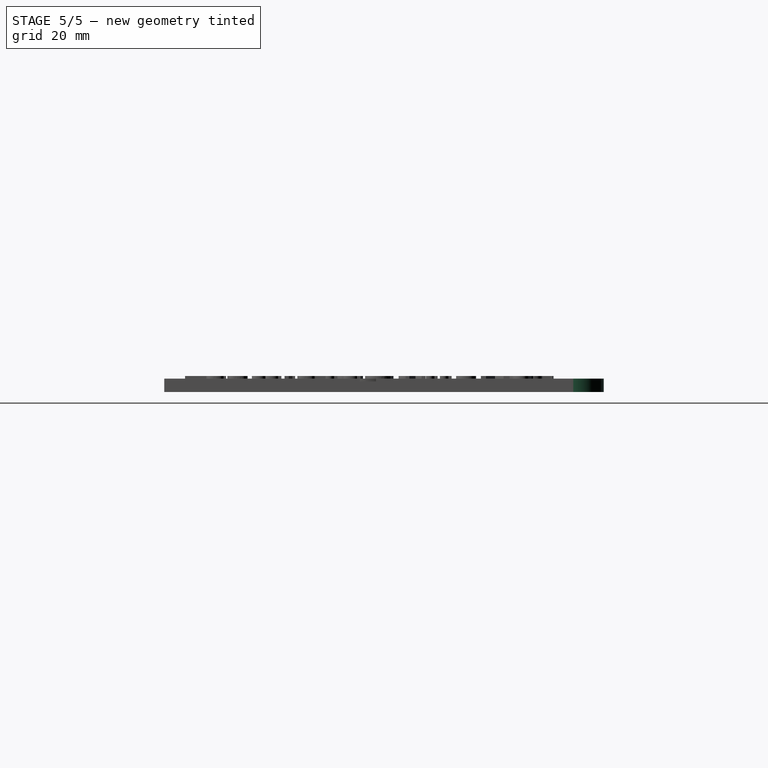
[diagram: stage 5 of 5 — right view after this stage's code; geometry added in this stage tinted green]
FEATURE [Sketcher::SketchObject] Sketch001
  AttachmentOffset = pos=(0,0,2.5) rot=(0,0,1;0rad)
  FullyConstrained = true
  MapMode = 5
  Placement = pos=(0,0,2.5) rot=(0,0,1;0rad)
  Support = -> [XY_Plane]
  expr: .AttachmentOffset.Base.z = Spreadsheet.outerSideThickness
  expr: Constraints[10] = Spreadsheet.picHeight
  expr: Constraints[11] = Spreadsheet.picWidth
  expr: Constraints[8] = Spreadsheet.sideThickness
  expr: Constraints[9] = Spreadsheet.sideThickness
  sketch-geometry (4):
    g0: LineSegment StartX=2 StartY=2 StartZ=0 EndX=107 EndY=2 EndZ=0
    g1: LineSegment StartX=107 StartY=2 StartZ=0 EndX=107 EndY=74 EndZ=0
    g2: LineSegment StartX=107 StartY=74 StartZ=0 EndX=2 EndY=74 EndZ=0
    g3: LineSegment StartX=2 StartY=74 StartZ=0 EndX=2 EndY=2 EndZ=0
  constraints (12):
    c: Coincident(g0,g1)
    c: Coincident(g1,g2)
    c: Coincident(g2,g3)
    c: Coincident(g3,g0)
    c: Horizontal(g0)
    c: Horizontal(g2)
    c: Vertical(g1)
    c: Vertical(g3)
    c: DistanceY(g-1,g0) = 2
    c: DistanceX(g-1,g0) = 2
    c: DistanceY(g3,g3) = 72
    c: DistanceX(g0,g0) = 105
FEATURE [PartDesign::Pocket] Pocket
  BaseFeature = -> Pad
  Direction = (0,0,-1)
  Length = 1.5
  Length2 = 5
  Profile = -> Sketch001
  ReferenceAxis = -> Sketch001 [N_Axis]
  Type = 0
  expr: Length = Spreadsheet.outerHoleDepth
FEATURE [Sketcher::SketchObject] Sketch003
  FullyConstrained = true
  MapMode = 5
  Support = -> [XY_Plane]
  expr: Constraints[11] = Spreadsheet.outerHeight
  expr: Constraints[12] = Spreadsheet.outerHeight
  expr: Constraints[1] = Spreadsheet.outerHeight
  expr: Constraints[9] = Spreadsheet.outerWidth / 2
  sketch-geometry (4):
    g0: ArcOfCircle CenterX=54.5 CenterY=76 CenterZ=0 NormalX=0 NormalY=0 NormalZ=1 AngleXU=0 Radius=6 StartAngle=0 EndAngle=3.14159
    g1: ArcOfCircle CenterX=54.5 CenterY=76 CenterZ=0 NormalX=0 NormalY=0 NormalZ=1 AngleXU=0 Radius=3 StartAngle=0 EndAngle=3.14159
    g2: LineSegment StartX=48.5 StartY=76 StartZ=0 EndX=51.5 EndY=76 EndZ=0
    g3: LineSegment StartX=57.5 StartY=76 StartZ=0 EndX=60.5 EndY=76 EndZ=0
  constraints (13):
    c: Coincident(g1,g0)
    c: DistanceY(g-1,g0) = 76
    c: Horizontal(g2)
    c: Coincident(g0,g2)
    c: Coincident(g0,g3)
    c: Coincident(g2,g1)
    c: Coincident(g3,g1)
    c: Radius(g1) = 3
    c: Radius(g0) = 6
    c: DistanceX(g-1,g0) = 54.5
    c: Horizontal(g3)
    c: DistanceY(g-1,g0) = 76
    c: DistanceY(g-1,g1) = 76
FEATURE [PartDesign::Pad] Pad004
  BaseFeature = -> Pocket
  Direction = (0,0,1)
  Length = 2.5
  Length2 = 10
  Profile = -> Sketch003
  ReferenceAxis = -> Sketch003 [N_Axis]
  Type = 0
  expr: Length = Spreadsheet.outerSideThickness
FEATURE [Sketcher::SketchObject] Sketch004
  AttachmentOffset = pos=(0,0,2.5) rot=(0,0,1;0rad)
  FullyConstrained = true
  MapMode = 5
  Placement = pos=(0,0,2.5) rot=(0,0,1;0rad)
  Support = -> [XY_Plane]
  expr: .AttachmentOffset.Base.z = Spreadsheet.outerSideThickness
  expr: Constraints[10] = Spreadsheet.midOpeningWidth
  expr: Constraints[11] = Spreadsheet.outerWidth
  expr: Constraints[9] = Spreadsheet.midOpeningToLower
  sketch-geometry (4):
    g0: LineSegment StartX=0 StartY=36.5 StartZ=0 EndX=109 EndY=36.5 EndZ=0
    g1: LineSegment StartX=109 StartY=36.5 StartZ=0 EndX=109 EndY=39.5 EndZ=0
    g2: LineSegment StartX=109 StartY=39.5 StartZ=0 EndX=0 EndY=39.5 EndZ=0
    g3: LineSegment StartX=0 StartY=39.5 StartZ=0 EndX=0 EndY=36.5 EndZ=0
  constraints (12):
    c: Coincident(g0,g1)
    c: Coincident(g1,g2)
    c: Coincident(g2,g3)
    c: Coincident(g3,g0)
    c: Horizontal(g0)
    c: Horizontal(g2)
    c: Vertical(g1)
    c: Vertical(g3)
    c: PointOnObject(g0,g-2)
    c: DistanceY(g-1,g0) = 36.5
    c: DistanceY(g1,g1) = 3
    c: DistanceX(g2,g2) = 109
FEATURE [PartDesign::Pocket] Pocket001
  BaseFeature = -> Pad004
  Direction = (0,0,-1)
  Length = 1.5
  Length2 = 5
  Profile = -> Sketch004
  ReferenceAxis = -> Sketch004 [N_Axis]
  Type = 0
  expr: Length = Spreadsheet.outerHoleDepth
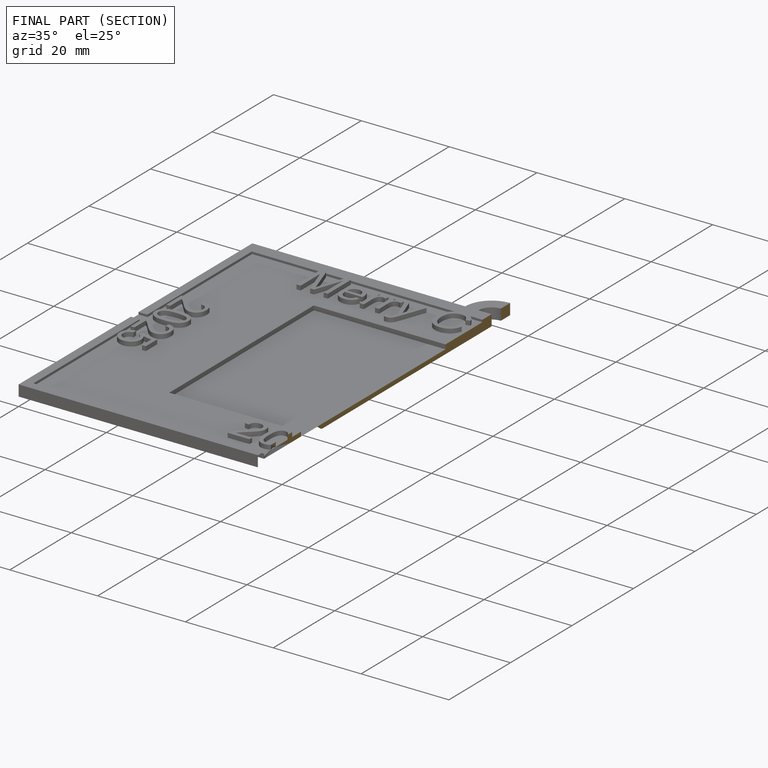
[diagram: finished part — half-section view (interior)]
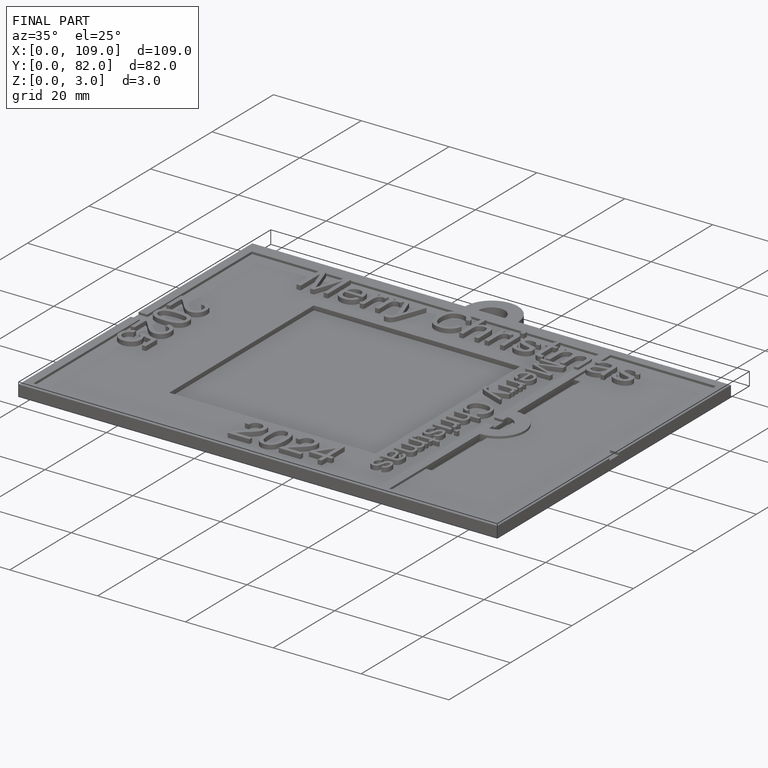
[diagram: finished part — iso view with bounding-box wireframe]
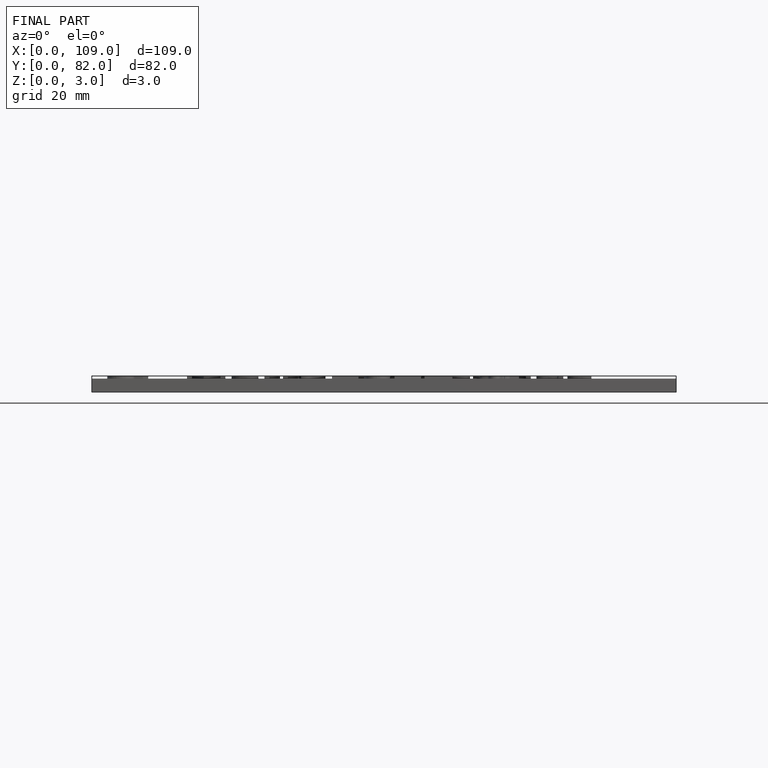
[diagram: finished part — front view with bounding-box wireframe]
